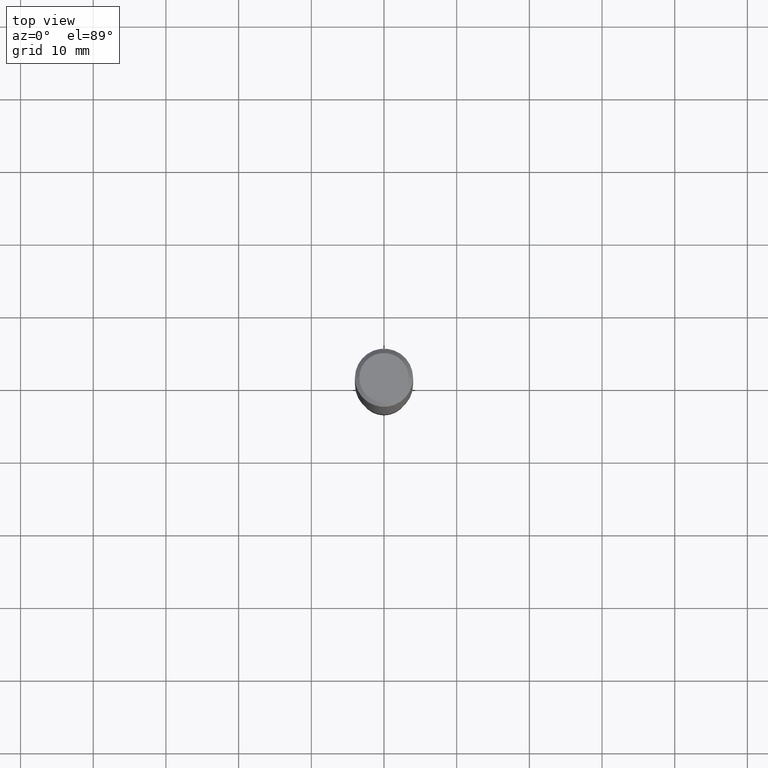
[diagram: clean part render]
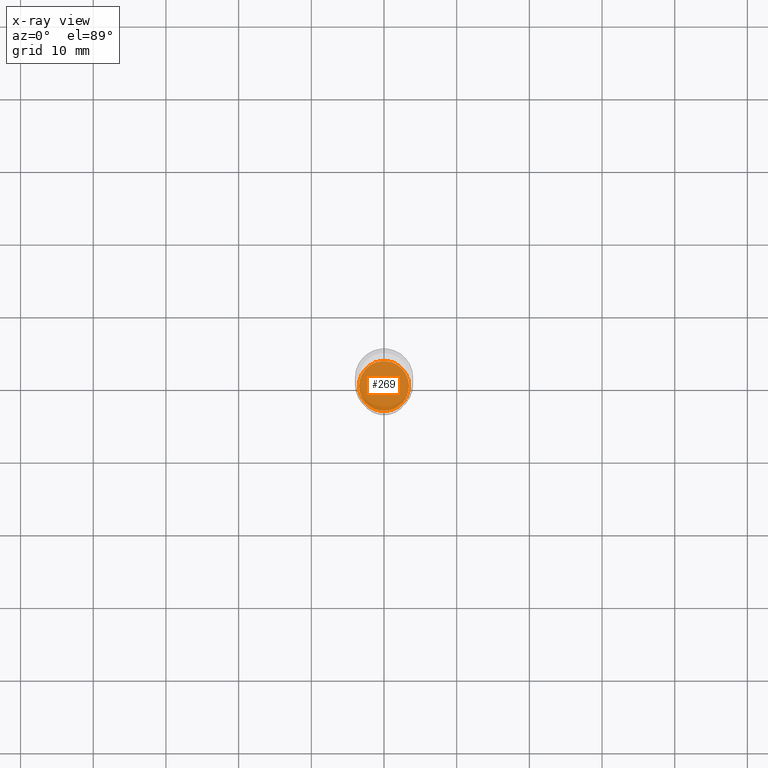
[diagram: x-ray — body ghosted, one internal face saturated and labeled with its STEP entity id]
A machine part, top view, then the same camera in x-ray: the body is ghosted and one INTERNAL B-rep face — a face not visible from any outside direction — is saturated and labeled: STEP entity #269.
In plain terms, the highlighted planar face has unit normal (-0, 0, 1).
Its self-contained STEP definition (entity closure, byte-faithful):
#3 = CARTESIAN_POINT ( 'NONE',  ( 6.390009990561761936E-29, -9.123240738397140526E-15, -2.613000000000000433 ) ) ;
#5 = PLANE ( 'NONE',  #392 ) ;
#32 = EDGE_CURVE ( 'NONE', #47, #358, #391, .T. ) ;
#47 = VERTEX_POINT ( 'NONE', #66 ) ;
#66 = CARTESIAN_POINT ( 'NONE',  ( -0.1355000000000000093, -8.157806104268093113E-15, -2.613000000000000433 ) ) ;
#85 = DIRECTION ( 'NONE',  ( 1.000000000000000000, -6.982962677686265922E-15, 4.876176775795935793E-29 ) ) ;
#103 = AXIS2_PLACEMENT_3D ( 'NONE', #3, #333, #326 ) ;
#111 = CARTESIAN_POINT ( 'NONE',  ( -9.674237826946843796E-30, -1.965950466082476908E-14, -2.612999999999999545 ) ) ;
#147 = DIRECTION ( 'NONE',  ( -2.438088387897960049E-29, 3.491481338843145188E-15, 1.000000000000000000 ) ) ;
#175 = ORIENTED_EDGE ( 'NONE', *, *, #32, .F. ) ;
#192 = CARTESIAN_POINT ( 'NONE',  ( 6.390009990561761936E-29, -9.123240738397140526E-15, -2.613000000000000433 ) ) ;
#260 = CIRCLE ( 'NONE', #103, 0.1355000000000000093 ) ;
#266 = EDGE_CURVE ( 'NONE', #358, #47, #260, .T. ) ;
#269 = ADVANCED_FACE ( 'NONE', ( #371 ), #5, .F. ) ;
#318 = CARTESIAN_POINT ( 'NONE',  ( 0.1355000000000000093, -1.006943218122363017E-14, -2.613000000000000433 ) ) ;
#326 = DIRECTION ( 'NONE',  ( 1.000000000000000000, -6.982962677686264344E-15, 0.000000000000000000 ) ) ;
#333 = DIRECTION ( 'NONE',  ( -2.445468806185136597E-29, 3.491481338843145583E-15, 1.000000000000000000 ) ) ;
#343 = DIRECTION ( 'NONE',  ( -2.445468806185136597E-29, 3.491481338843145583E-15, 1.000000000000000000 ) ) ;
#358 = VERTEX_POINT ( 'NONE', #318 ) ;
#371 = FACE_OUTER_BOUND ( 'NONE', #435, .T. ) ;
#391 = CIRCLE ( 'NONE', #432, 0.1355000000000000093 ) ;
#392 = AXIS2_PLACEMENT_3D ( 'NONE', #111, #147, #85 ) ;
#396 = DIRECTION ( 'NONE',  ( 1.000000000000000000, -6.982962677686264344E-15, 0.000000000000000000 ) ) ;
#432 = AXIS2_PLACEMENT_3D ( 'NONE', #192, #343, #396 ) ;
#435 = EDGE_LOOP ( 'NONE', ( #463, #175 ) ) ;
#463 = ORIENTED_EDGE ( 'NONE', *, *, #266, .F. ) ;